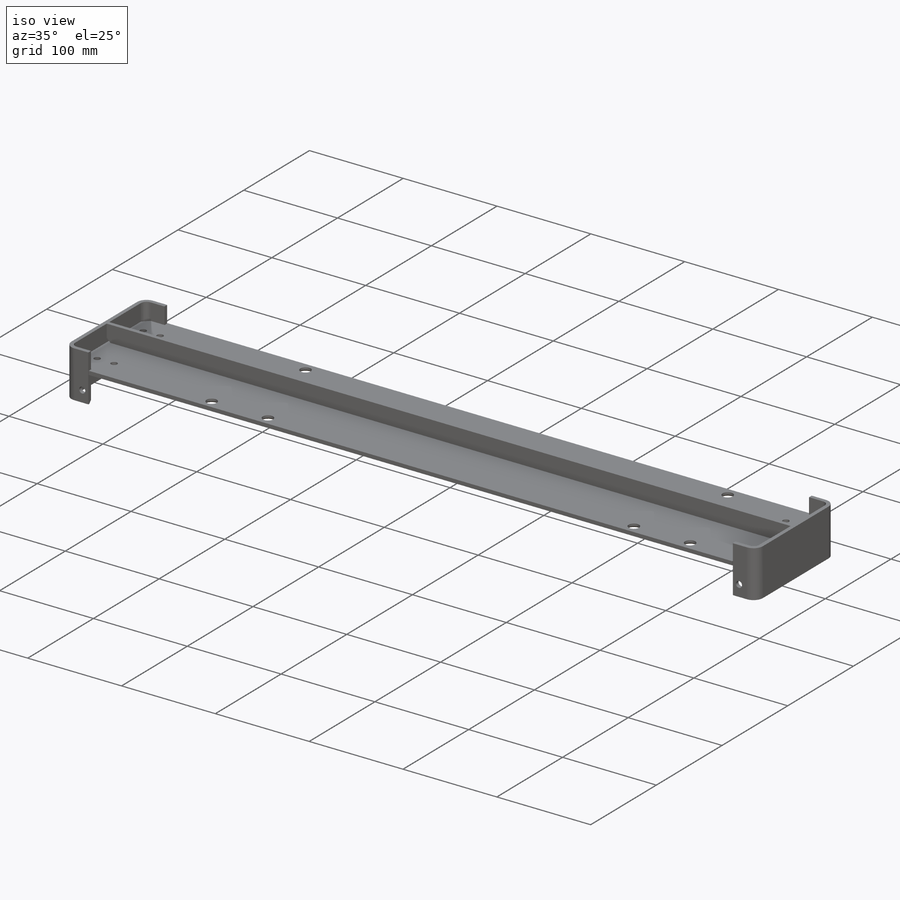
[diagram: iso view]
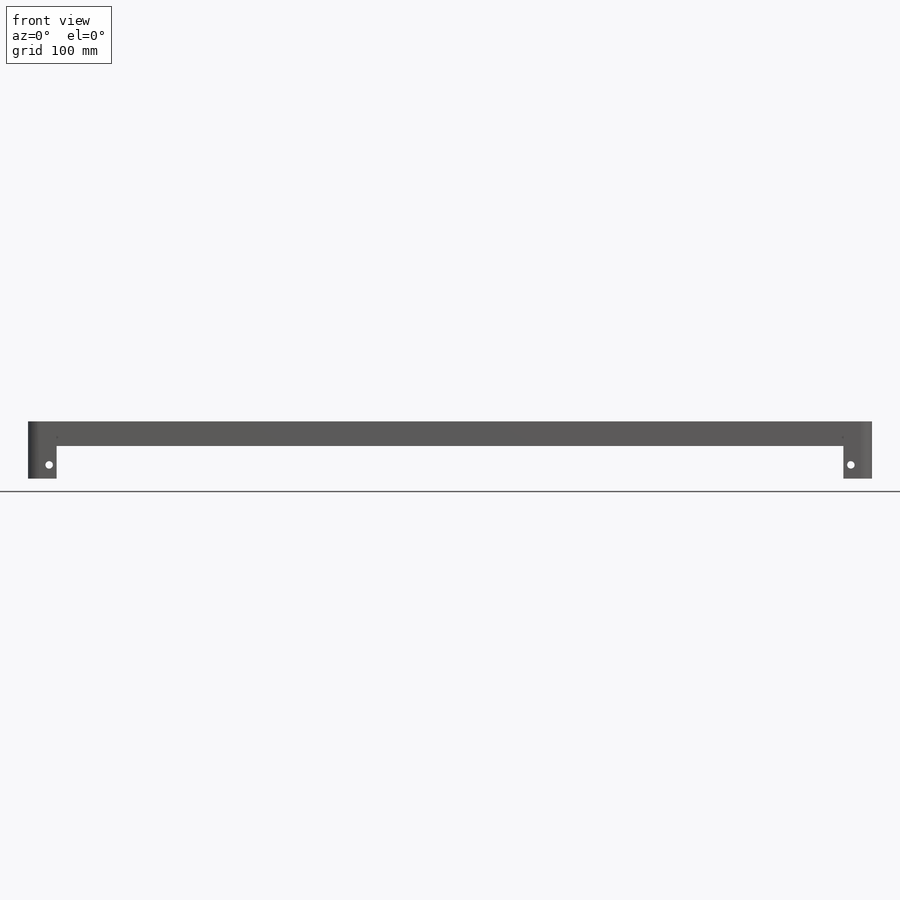
[diagram: front view]
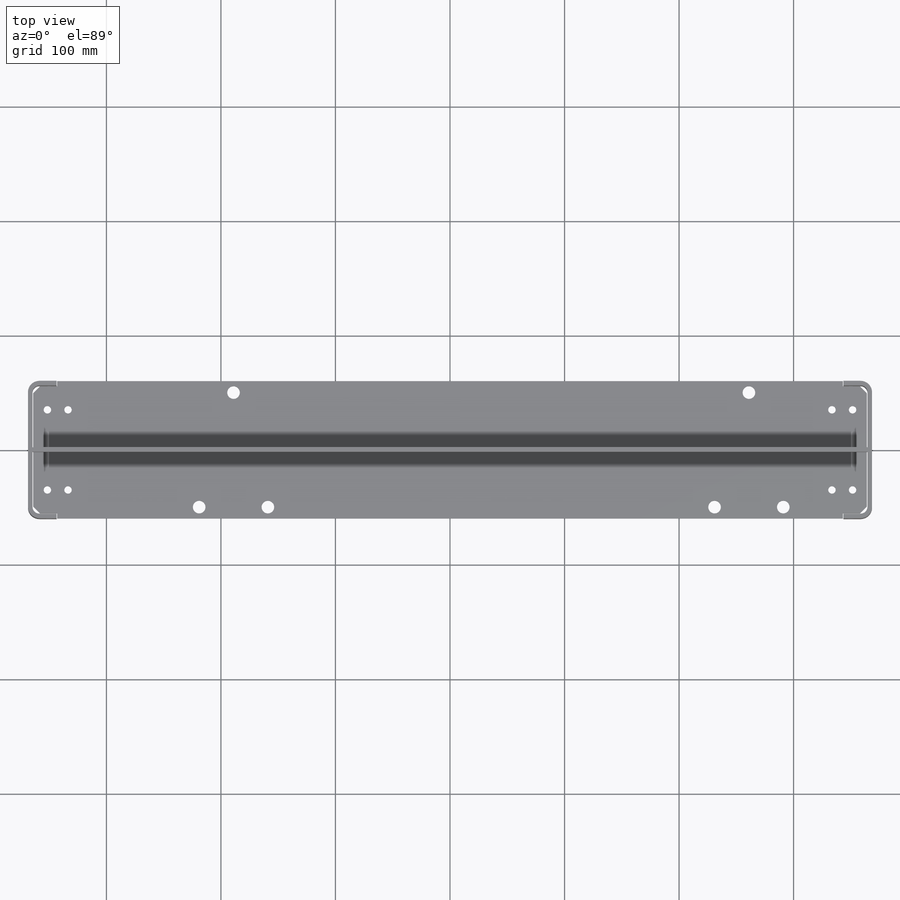
[diagram: top view]
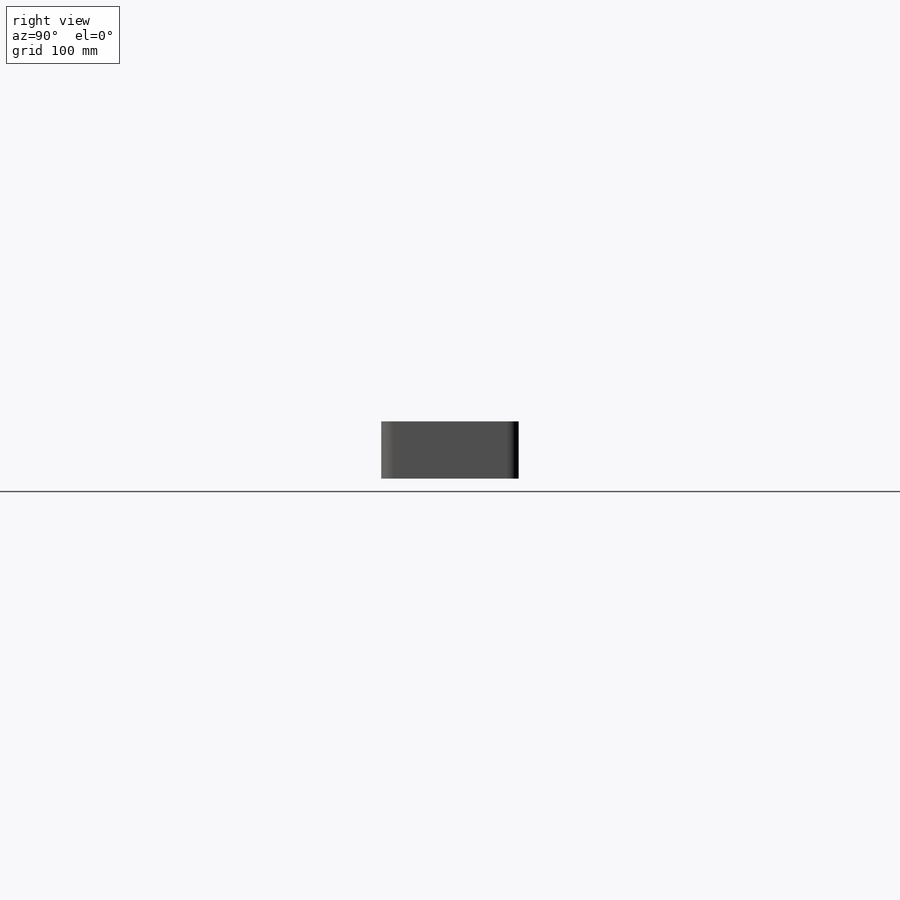
[diagram: right view]
SOLIDWORKS PART (.sldprt)
format: sldprt  version: not decoded by parser v0  size: 466,944 bytes
history: native  units: mm
features: sketch x11, material x4, extrude x2, cut_extrude x2, chamfer x2, plane x1, hole x1 + 1 further entry (+13 scaffold rows collapsed)
feature tree (37):
  scaffold x13  (default folders/planes/origin — collapsed)
  material  "Ст 3 ГОСТ 380-2005"
  material  "PTricksFreeParameters"
  material  "PTricksEqu"
  material  "PTricksFreeParameters"
  plane  "Спереди"
  "Начало координат"
  sketch  "Эскиз1"  dims[D1=50.0mm D2=737.0mm D3=28.5mm]
  sketch  "Эскиз2"  dims[D1=120.0mm]
  sketch  "Sketch1"  dims[c1.D2=3.175mm c1.R=6.0mm c1.Radius_2=3.175mm c1.r3=3.0mm c1.r1=1.0mm c1.r2=1.0mm c2.r3=1.0mm c2.V_leg=50.8mm c2.H_leg=50.8mm c2.Thickness=3.175mm c2.S2=3.0mm c2.D3=46.0375mm c3.V_leg=25.4mm c3.H_leg=25.0mm c3.Flat_wid=~0.00508mm c3.D3=6.35mm c3.D2=0.005mm c4.D3=20.0mm c4.H=120.0mm c4.D5=~19.488932mm c4.D6=~5.434439mm c4.D1=2.0mm c4.b=25.0mm c4.Х0=5.4mm c4.S2=22.0mm c5.D1=22.0mm c5.D2=90.0deg c5.S=4.0mm]
  sketch  "Sketch11"  dims[c1.D2=3.175mm c1.R=6.0mm c1.Radius_2=3.175mm c1.r3=3.0mm c1.r1=1.0mm c1.r2=1.0mm c2.r3=1.0mm c2.V_leg=50.8mm c2.H_leg=50.8mm c2.Thickness=3.175mm c2.S2=3.0mm c2.D3=46.0375mm c3.V_leg=25.4mm c3.H_leg=25.0mm c3.Flat_wid=~0.00508mm c3.D3=6.35mm c3.D2=0.005mm c4.D3=20.0mm c4.H=120.0mm c4.D5=~19.488932mm c4.D6=~5.434439mm c4.D1=2.0mm c4.b=25.0mm c4.Х0=5.4mm c4.S2=22.0mm c5.D1=22.0mm c5.D2=90.0deg c5.S=3.0mm]
  sketch  "Эскиз5"  dims[D3=55.0mm D4=6.0mm D5=6.0mm D2=25.0mm D1=0.5mm]
  extrude  "Вытянуть1"  Depth=4mm
  sketch  "Эскиз6"  dims[D3=4.0mm D6=4.0mm]
  extrude  "Вытянуть2"  Depth=4mm
  sketch  "Эскиз7"  dims[D1=41.0mm D2=10.0mm D3=185.0mm D4=100.0mm D5=60.0mm D6=26.5mm D7=41.0mm D8=10.0mm D9=185.0mm D10=26.5mm]
  hole  "Диаметр отверстия Ø11.0 (11)1"  [1 undecoded]
  sketch  "Трехмерный эскиз1"
  sketch  "Эскиз8"  dims[hole-wizard template sketch: 54 standard entries collapsed; hole parameters kept: c17.Диаметр сквозного отверстия=11.0mm c17.Глубина сквозного отверстия=21.5mm c17.Диаметр передней зенковки=14.0mm c17.D4=~3.666174mm c17.Угол передней зенковки=90.0deg]
  sketch  "Эскиз9"  dims[D3=6.5mm D1=12.0mm D2=6.5mm]
  cut_extrude  "Вытянуть3"  [1 undecoded]
  sketch  "Эскиз10"  dims[c1.D4=6.5mm c1.D5=6.5mm c1.D1=1.0mm c1.D2=18.0mm c1.D3=70.0mm c2.D5=9.25mm]
  cut_extrude  "Вытянуть4"  [1 undecoded]
  chamfer  "Фаска1"  Distance=2.5mm Angle=45deg
  chamfer  "Фаска2"  Distance=2.5mm Angle=45deg
decode coverage: 14 of 18 modeling features carry decoded parameters; 1 rows unclassified (native names shown)
note: ~ marks probable driven/reference dimensions
note: 3 parameter values undecoded
summary: no parameter record found for 3 features
note: suppression state not decoded; provenance and decode notes live in map.json
